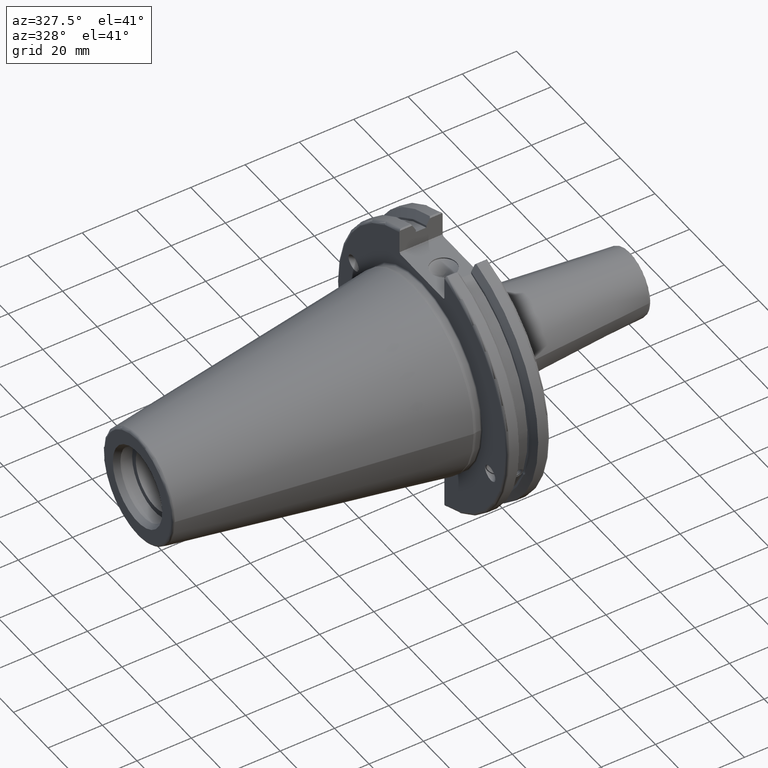
[diagram: clean part render]
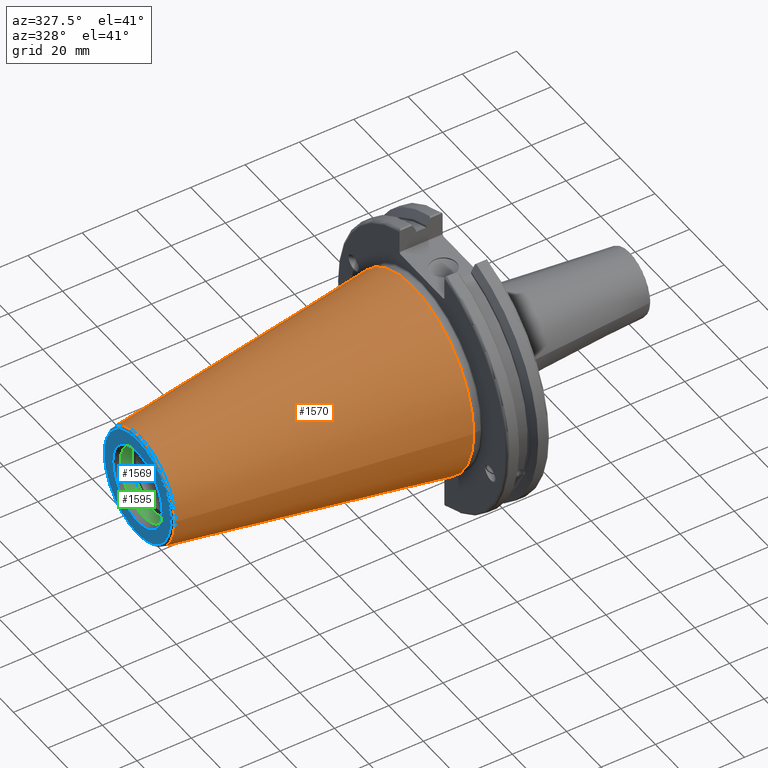
[diagram: same view with three faces highlighted in distinct colors, each labeled with its STEP entity id]
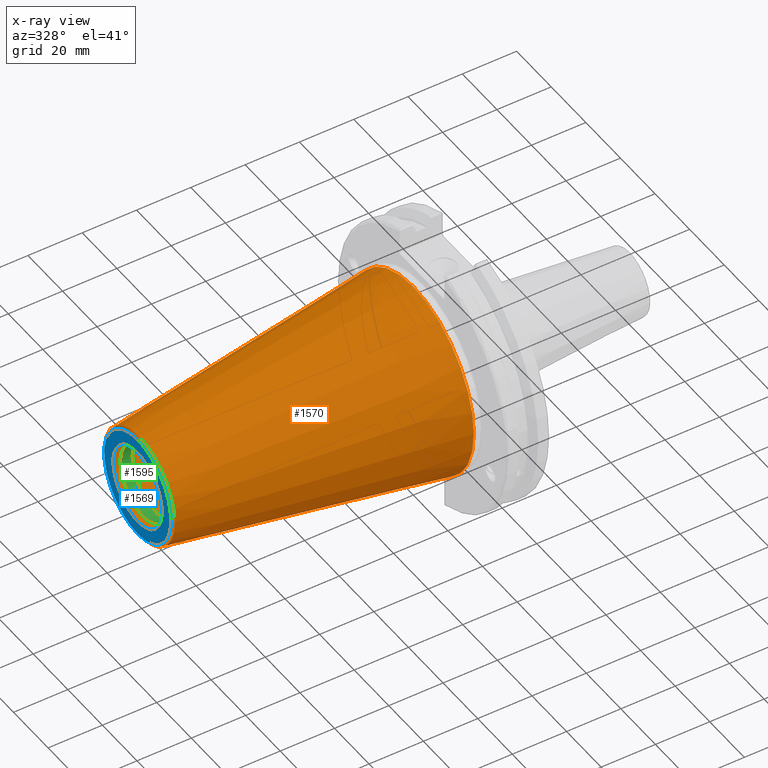
[diagram: x-ray of the same camera — body ghosted, the three highlighted faces saturated]
A machine part, auxiliary view with three faces highlighted in distinct colors.
The next image is the same camera in x-ray (body ghosted, the three faces saturated) — at least one of them is partly hidden behind the body in this view.
Their STEP definitions:

[orange] entity #1570 — the highlighted conical surface has half-angle 8.297 deg.
#231=FACE_OUTER_BOUND('',#341,.T.);
#341=EDGE_LOOP('',(#1363,#1364,#1365,#1366,#1367));
#451=LINE('',#3118,#547);
#547=VECTOR('',#2141,27.5166666666666);
#625=CIRCLE('',#1747,20.233121911427);
#626=CIRCLE('',#1748,20.233121911427);
#630=CIRCLE('',#1754,34.925);
#786=VERTEX_POINT('',#3105);
#787=VERTEX_POINT('',#3106);
#790=VERTEX_POINT('',#3116);
#994=EDGE_CURVE('',#786,#787,#625,.T.);
#995=EDGE_CURVE('',#787,#786,#626,.T.);
#999=EDGE_CURVE('',#790,#790,#630,.T.);
#1000=EDGE_CURVE('',#790,#787,#451,.T.);
#1363=ORIENTED_EDGE('',*,*,#999,.F.);
#1364=ORIENTED_EDGE('',*,*,#1000,.T.);
#1365=ORIENTED_EDGE('',*,*,#994,.F.);
#1366=ORIENTED_EDGE('',*,*,#995,.F.);
#1367=ORIENTED_EDGE('',*,*,#1000,.F.);
#1503=CONICAL_SURFACE('',#1753,27.5166666666666,0.14481249823894);
#1570=ADVANCED_FACE('',(#231),#1503,.T.);
#1747=AXIS2_PLACEMENT_3D('',#3107,#2125,#2126);
#1748=AXIS2_PLACEMENT_3D('',#3108,#2127,#2128);
#1753=AXIS2_PLACEMENT_3D('',#3115,#2137,#2138);
#1754=AXIS2_PLACEMENT_3D('',#3117,#2139,#2140);
#2125=DIRECTION('center_axis',(-1.,0.,0.));
#2126=DIRECTION('ref_axis',(0.,-1.,3.06161699786838E-17));
#2127=DIRECTION('center_axis',(-1.,0.,0.));
#2128=DIRECTION('ref_axis',(0.,-1.,3.06161699786838E-17));
#2137=DIRECTION('center_axis',(1.,0.,0.));
#2138=DIRECTION('ref_axis',(0.,1.,0.));
#2139=DIRECTION('center_axis',(1.,0.,0.));
#2140=DIRECTION('ref_axis',(0.,0.,-1.));
#2141=DIRECTION('',(-0.989532981063281,0.144306893071729,1.76724974695192E-17));
#3105=CARTESIAN_POINT('',(-100.744306893072,-2.47784279855872E-15,20.233121911427));
#3106=CARTESIAN_POINT('',(-100.744306893072,-20.233121911427,-2.47784279855872E-15));
#3107=CARTESIAN_POINT('Origin',(-100.744306893072,0.,-3.09730349819841E-15));
#3108=CARTESIAN_POINT('Origin',(-100.744306893072,0.,-3.09730349819841E-15));
#3115=CARTESIAN_POINT('Origin',(-50.8,0.,0.));
#3116=CARTESIAN_POINT('',(-8.88178419700125E-15,-34.925,-4.27707894602213E-15));
#3117=CARTESIAN_POINT('Origin',(0.,0.,0.));
#3118=CARTESIAN_POINT('',(-50.8,-27.5166666666666,-3.3698197756538E-15));

[blue] entity #1569 — the highlighted planar face has unit normal (-1, 0, 0).
#88=FACE_BOUND('',#340,.T.);
#111=PLANE('',#1751);
#230=FACE_OUTER_BOUND('',#339,.T.);
#339=EDGE_LOOP('',(#1361));
#340=EDGE_LOOP('',(#1362));
#628=CIRCLE('',#1750,19.2435889303637);
#629=CIRCLE('',#1752,14.2875);
#788=VERTEX_POINT('',#3109);
#789=VERTEX_POINT('',#3113);
#997=EDGE_CURVE('',#788,#788,#628,.T.);
#998=EDGE_CURVE('',#789,#789,#629,.T.);
#1361=ORIENTED_EDGE('',*,*,#997,.F.);
#1362=ORIENTED_EDGE('',*,*,#998,.T.);
#1569=ADVANCED_FACE('',(#230,#88),#111,.T.);
#1750=AXIS2_PLACEMENT_3D('',#3111,#2131,#2132);
#1751=AXIS2_PLACEMENT_3D('',#3112,#2133,#2134);
#1752=AXIS2_PLACEMENT_3D('',#3114,#2135,#2136);
#2131=DIRECTION('center_axis',(1.,0.,0.));
#2132=DIRECTION('ref_axis',(0.,-1.,1.83697019872103E-16));
#2133=DIRECTION('center_axis',(-1.,0.,0.));
#2134=DIRECTION('ref_axis',(0.,0.,1.));
#2135=DIRECTION('center_axis',(1.,0.,0.));
#2136=DIRECTION('ref_axis',(0.,0.,-1.));
#3109=CARTESIAN_POINT('',(-101.6,-2.35665995876774E-15,19.2435889303637));
#3111=CARTESIAN_POINT('Origin',(-101.6,0.,0.));
#3112=CARTESIAN_POINT('Origin',(-101.6,20.1083333333333,0.));
#3113=CARTESIAN_POINT('',(-101.6,-14.2875,-1.74971411428178E-15));
#3114=CARTESIAN_POINT('Origin',(-101.6,0.,0.));

[green] entity #1595 — the highlighted cylindrical surface (bore or boss wall) has radius 13.1 mm, axis along (1, 0, 0).
#169=CYLINDRICAL_SURFACE('',#1788,13.1);
#256=FACE_OUTER_BOUND('',#367,.T.);
#367=EDGE_LOOP('',(#1480,#1481,#1482,#1483));
#465=LINE('',#3180,#561);
#561=VECTOR('',#2225,13.1);
#640=CIRCLE('',#1789,13.1);
#641=CIRCLE('',#1790,13.1);
#796=VERTEX_POINT('',#3177);
#797=VERTEX_POINT('',#3179);
#1025=EDGE_CURVE('',#796,#796,#640,.T.);
#1026=EDGE_CURVE('',#796,#797,#465,.T.);
#1027=EDGE_CURVE('',#797,#797,#641,.T.);
#1480=ORIENTED_EDGE('',*,*,#1025,.T.);
#1481=ORIENTED_EDGE('',*,*,#1026,.T.);
#1482=ORIENTED_EDGE('',*,*,#1027,.F.);
#1483=ORIENTED_EDGE('',*,*,#1026,.F.);
#1595=ADVANCED_FACE('',(#256),#169,.F.);
#1788=AXIS2_PLACEMENT_3D('',#3176,#2221,#2222);
#1789=AXIS2_PLACEMENT_3D('',#3178,#2223,#2224);
#1790=AXIS2_PLACEMENT_3D('',#3181,#2226,#2227);
#2221=DIRECTION('center_axis',(1.,0.,0.));
#2222=DIRECTION('ref_axis',(0.,1.,0.));
#2223=DIRECTION('center_axis',(1.,0.,0.));
#2224=DIRECTION('ref_axis',(0.,0.,-1.));
#2225=DIRECTION('',(-1.,0.,0.));
#2226=DIRECTION('center_axis',(1.,0.,0.));
#2227=DIRECTION('ref_axis',(0.,0.,-1.));
#3176=CARTESIAN_POINT('Origin',(-97.396594833006,0.,0.));
#3177=CARTESIAN_POINT('',(-95.25,-13.1,-1.60428730688303E-15));
#3178=CARTESIAN_POINT('Origin',(-95.25,0.,0.));
#3179=CARTESIAN_POINT('',(-99.5431896660119,-13.1,-1.60428730688303E-15));
#3180=CARTESIAN_POINT('',(-97.396594833006,-13.1,-1.60428730688303E-15));
#3181=CARTESIAN_POINT('Origin',(-99.5431896660119,0.,0.));